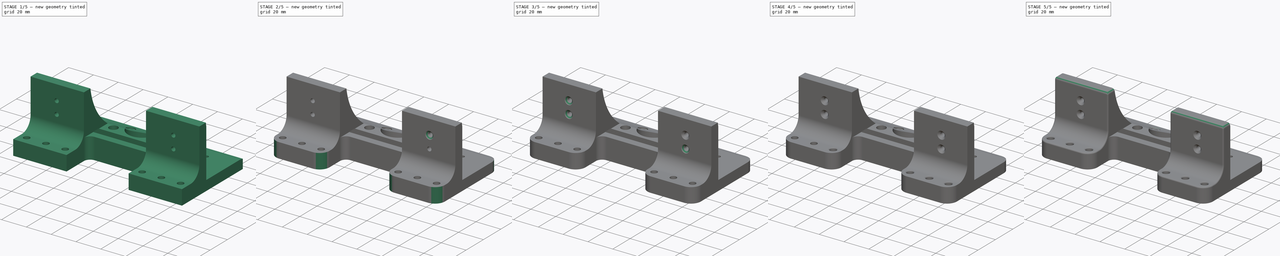
[diagram: build sequence overview — one tinted view per stage of 5, left to right]
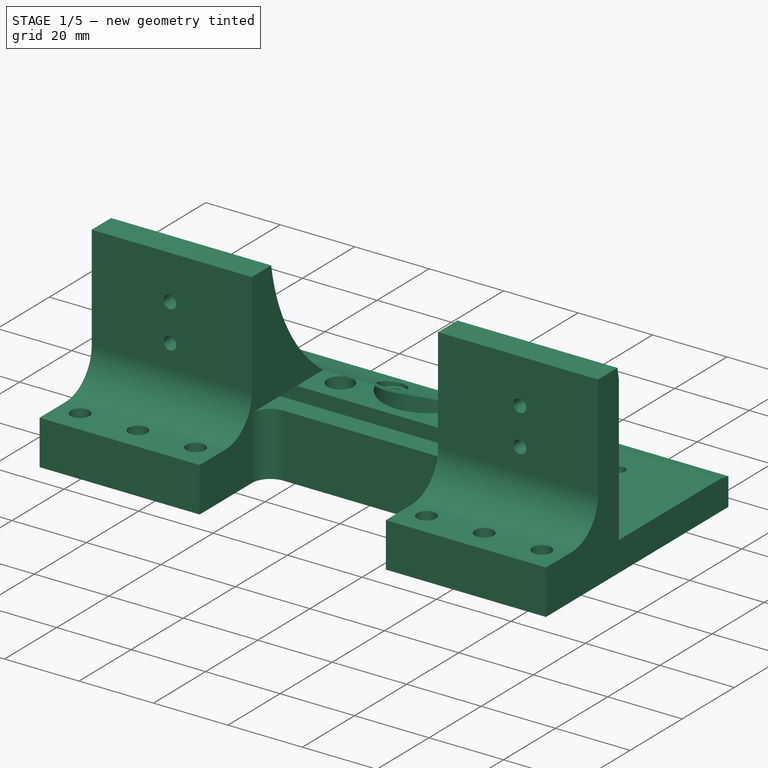
[diagram: stage 1 of 5 — iso view after this stage's code; geometry added in this stage tinted green]
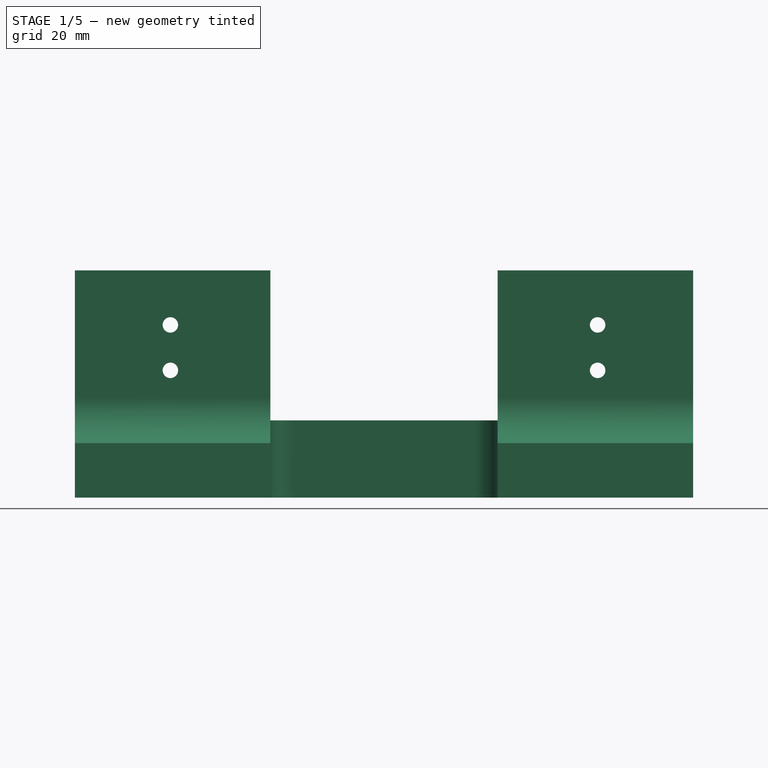
[diagram: stage 1 of 5 — front view after this stage's code; geometry added in this stage tinted green]
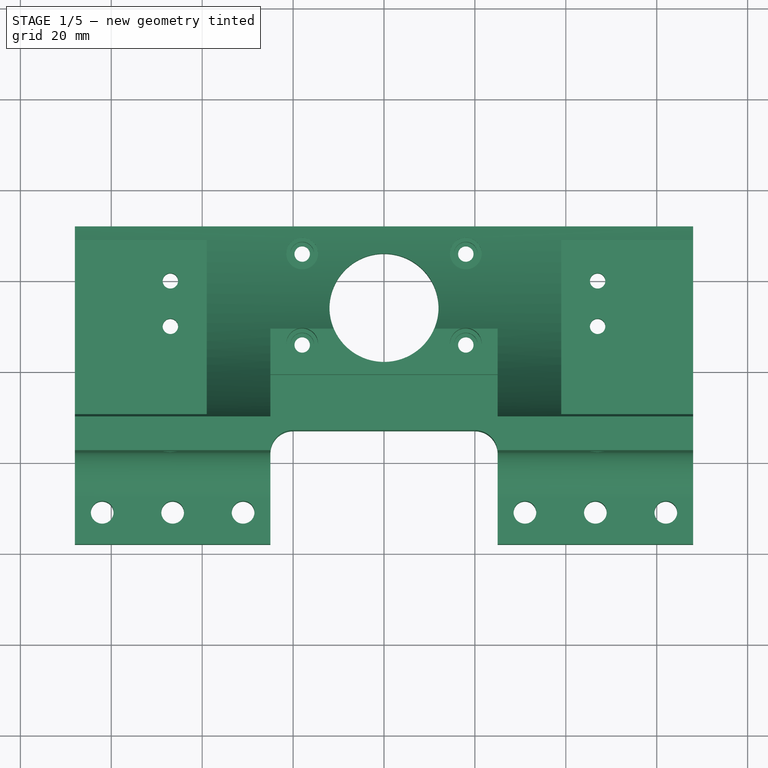
[diagram: stage 1 of 5 — top view after this stage's code; geometry added in this stage tinted green]
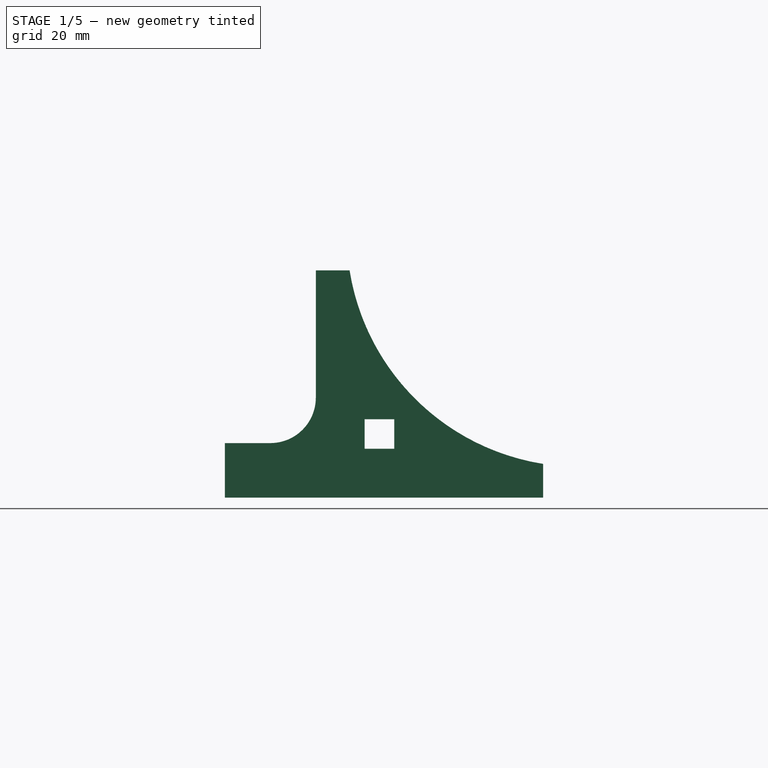
[diagram: stage 1 of 5 — right view after this stage's code; geometry added in this stage tinted green]
FCSTD DOCUMENT  (FreeCAD 0.16R6706 (Git))
Label: HipReinforce2
License: All rights reserved
LicenseURL: http://en.wikipedia.org/wiki/All_rights_reserved
objects: PartDesign::Fillet×18, PartDesign::Chamfer×14, Sketcher::SketchObject×10, PartDesign::Pocket×9, PartDesign::Pad×1
note: 62 computed .brp shape members not serialized (recipe doc carries the construction recipe); baked Part::Feature solids carry a one-line shape summary decoded from their .brp

FEATURE [Sketcher::SketchObject] Sketch
  sketch-geometry (13):
    g0: LineSegment StartX=-68 StartY=-88 StartZ=0 EndX=68 EndY=-88 EndZ=0
    g1: LineSegment StartX=68 StartY=-88 StartZ=0 EndX=68 EndY=-158 EndZ=0
    g2: LineSegment StartX=68 StartY=-158 StartZ=0 EndX=-68 EndY=-158 EndZ=0
    g3: LineSegment StartX=-68 StartY=-158 StartZ=0 EndX=-68 EndY=-88 EndZ=0
    g4: LineSegment [constr] StartX=-25 StartY=-29 StartZ=0 EndX=25 EndY=-29 EndZ=0
    g5: LineSegment [constr] StartX=25 StartY=-29 StartZ=0 EndX=25 EndY=-131 EndZ=0
    g6: LineSegment [constr] StartX=25 StartY=-131 StartZ=0 EndX=-25 EndY=-131 EndZ=0
    g7: LineSegment [constr] StartX=-25 StartY=-131 StartZ=0 EndX=-25 EndY=-29 EndZ=0
    g8: LineSegment [constr] StartX=-75 StartY=-80 StartZ=0 EndX=75 EndY=-80 EndZ=0
    g9: LineSegment [constr] StartX=-68 StartY=-30 StartZ=0 EndX=-39 EndY=-30 EndZ=0
    g10: LineSegment [constr] StartX=-39 StartY=-30 StartZ=0 EndX=-39 EndY=-130 EndZ=0
    g11: LineSegment [constr] StartX=-39 StartY=-130 StartZ=0 EndX=-68 EndY=-130 EndZ=0
    g12: LineSegment [constr] StartX=-68 StartY=-130 StartZ=0 EndX=-68 EndY=-30 EndZ=0
  constraints (40):
    c: Coincident(g0,g1)
    c: Coincident(g1,g2)
    c: Coincident(g2,g3)
    c: Coincident(g3,g0)
    c: Horizontal(g0)
    c: Horizontal(g2)
    c: Vertical(g1)
    c: Vertical(g3)
    c: Symmetric(g0,g0,g-2)
    c: Coincident(g4,g5)
    c: Coincident(g5,g6)
    c: Coincident(g6,g7)
    c: Coincident(g7,g4)
    c: Horizontal(g4)
    c: Horizontal(g6)
    c: Vertical(g5)
    c: Vertical(g7)
    c: DistanceY(g8,g-1) = 80
    c: Symmetric(g6,g4,g8)
    c: DistanceX(g6,g5) = 50
    c: DistanceY(g5,g4) = 102
    c: Coincident(g9,g10)
    c: Coincident(g10,g11)
    c: Coincident(g11,g12)
    c: Coincident(g12,g9)
    c: Horizontal(g9)
    c: Horizontal(g11)
    c: Vertical(g10)
    c: Vertical(g12)
    c: DistanceY(g11,g9) = 100
    c: Symmetric(g10,g9,g8)
    c: DistanceX(g11,g10) = 29
    c: DistanceX(g10,g6) = 14
    c: Symmetric(g4,g4,g-2)
    c: PointOnObject(g11,g3)
    c: DistanceY(g0,g8) = 8
    c: Symmetric(g8,g8,g-2)
    c: DistanceX(g8,g8) = 150
    c: DistanceY(g1,g0) = 70
    c: DistanceY(g2,g10) = 28
FEATURE [PartDesign::Pad] Pad
  Length = 50
  Length2 = 100
  Sketch = -> Sketch
  Type = 0
FEATURE [Sketcher::SketchObject] Sketch001
  Placement = pos=(-68,0,0) rot=(0.57735,-0.57735,-0.57735;2.0944rad)
  Support = -> Pad [Face4]
  sketch-geometry (20):
    g0: Circle CenterX=80 CenterY=58 CenterZ=0 NormalX=0 NormalY=0 NormalZ=1 Radius=51.2
    g1: LineSegment [constr] StartX=30 StartY=108 StartZ=0 EndX=130 EndY=108 EndZ=0
    g2: LineSegment [constr] StartX=130 StartY=108 StartZ=0 EndX=130 EndY=8 EndZ=0
    g3: LineSegment [constr] StartX=130 StartY=8 StartZ=0 EndX=30 EndY=8 EndZ=0
    g4: LineSegment [constr] StartX=30 StartY=8 StartZ=0 EndX=30 EndY=108 EndZ=0
    g5: LineSegment StartX=120.75 StartY=17.25 StartZ=0 EndX=127.25 EndY=17.25 EndZ=0
    g6: LineSegment StartX=127.25 StartY=17.25 StartZ=0 EndX=127.25 EndY=10.75 EndZ=0
    g7: LineSegment StartX=127.25 StartY=10.75 StartZ=0 EndX=120.75 EndY=10.75 EndZ=0
    g8: LineSegment StartX=120.75 StartY=10.75 StartZ=0 EndX=120.75 EndY=17.25 EndZ=0
    g9: GeomPoint [constr] X=124 Y=14 Z=0
    g10: Circle [constr] CenterX=124 CenterY=23 CenterZ=0 NormalX=0 NormalY=0 NormalZ=1 Radius=1.7
    g11: LineSegment [constr] StartX=124 StartY=14 StartZ=0 EndX=124 EndY=23 EndZ=0
    g12: LineSegment StartX=138 StartY=112 StartZ=0 EndX=178 EndY=112 EndZ=0
    g13: LineSegment StartX=178 StartY=112 StartZ=0 EndX=178 EndY=12 EndZ=0
    g14: LineSegment StartX=178 StartY=12 StartZ=0 EndX=148 EndY=12 EndZ=0
    g15: LineSegment StartX=138 StartY=22 StartZ=0 EndX=138 EndY=112 EndZ=0
    g16: LineSegment [constr] StartX=130 StartY=8 StartZ=0 EndX=138 EndY=8 EndZ=0
    g17: Circle [constr] CenterX=115 CenterY=14 CenterZ=0 NormalX=0 NormalY=0 NormalZ=1 Radius=1.5
    g18: LineSegment [constr] StartX=124 StartY=14 StartZ=0 EndX=115 EndY=14 EndZ=0
    g19: ArcOfCircle CenterX=148 CenterY=22 CenterZ=0 NormalX=0 NormalY=0 NormalZ=1 Radius=10 StartAngle=3.14159 EndAngle=4.71239
  constraints (56):
    c: Radius(g0) = 51.2
    c: DistanceX(g-1,g0) = 80
    c: DistanceY(g-1,g0) = 58
    c: Coincident(g1,g2)
    c: Coincident(g2,g3)
    c: Coincident(g3,g4)
    c: Coincident(g4,g1)
    c: Horizontal(g1)
    c: Horizontal(g3)
    c: Vertical(g2)
    c: Vertical(g4)
    c: Equal(g2,g1)
    c: DistanceX(g1,g1) = 100
    c: Symmetric(g3,g1,g0)
    c: Coincident(g5,g6)
    c: Coincident(g6,g7)
    c: Coincident(g7,g8)
    c: Coincident(g8,g5)
    c: Horizontal(g5)
    c: Horizontal(g7)
    c: Vertical(g6)
    c: Vertical(g8)
    c: Symmetric(g7,g5,g9)
    c: DistanceY(g2,g9) = 6
    c: DistanceX(g9,g2) = 6
    c: DistanceY(g7,g5) = 6.5
    c: Equal(g7,g8)
    c: Radius(g10) = 1.7
    c: DistanceY(g9,g10) = 9
    c: Coincident(g11,g9)
    c: Coincident(g11,g10)
    c: Vertical(g11)
    c: Coincident(g12,g13)
    c: Coincident(g13,g14)
    c: Coincident(g15,g12)
    c: Horizontal(g12)
    c: Horizontal(g14)
    c: Vertical(g13)
    c: Vertical(g15)
    c: DistanceY(g13,g12) = 100
    c: DistanceX(g12,g12) = 40
    c: DistanceX(g-1,g16) = 138
    c: Coincident(g16,g2)
    c: Horizontal(g16)
    c: Coincident(g18,g9)
    c: Coincident(g18,g17)
    c: Horizontal(g18)
    c: DistanceX(g17,g9) = 9
    c: Radius(g17) = 1.5
    c: DistanceX(g-1,g17) = 115
    c: DistanceY(g-1,g17) = 14
    c: Tangent(g14,g19) = 1.5708
    c: Tangent(g15,g19) = 1.5708
    c: DistanceY(g16,g15) = 14
    c: DistanceX(g2,g15) = 8
    c: DistanceY(g-1,g14) = 12
FEATURE [PartDesign::Pocket] Pocket
  Length = 5
  Sketch = -> Sketch001
  Type = 1
FEATURE [Sketcher::SketchObject] Sketch002
  Placement = pos=(-68,0,0) rot=(0.57735,-0.57735,-0.57735;2.0944rad)
  Support = -> Pocket [Face5]
  sketch-geometry (5):
    g0: LineSegment StartX=30 StartY=108 StartZ=0 EndX=130 EndY=108 EndZ=0
    g1: LineSegment StartX=130 StartY=108 StartZ=0 EndX=130 EndY=8 EndZ=0
    g2: LineSegment StartX=130 StartY=8 StartZ=0 EndX=30 EndY=8 EndZ=0
    g3: LineSegment StartX=30 StartY=8 StartZ=0 EndX=30 EndY=108 EndZ=0
    g4: GeomPoint [constr] X=80 Y=58 Z=0
  constraints (13):
    c: Coincident(g0,g1)
    c: Coincident(g1,g2)
    c: Coincident(g2,g3)
    c: Coincident(g3,g0)
    c: Horizontal(g0)
    c: Horizontal(g2)
    c: Vertical(g1)
    c: Vertical(g3)
    c: Symmetric(g2,g0,g4)
    c: Equal(g3,g0)
    c: DistanceY(g2,g0) = 100
    c: DistanceY(g-1,g4) = 58
    c: DistanceX(g-1,g4) = 80
FEATURE [PartDesign::Pocket] Pocket001
  Length = 29
  Sketch = -> Sketch002
  Type = 0
FEATURE [Sketcher::SketchObject] Sketch003
  Placement = pos=(68,0,0) rot=(0.57735,0.57735,0.57735;2.0944rad)
  Support = -> Pocket001 [Face3]
  sketch-geometry (5):
    g0: LineSegment StartX=-130 StartY=108 StartZ=0 EndX=-30 EndY=108 EndZ=0
    g1: LineSegment StartX=-30 StartY=108 StartZ=0 EndX=-30 EndY=8 EndZ=0
    g2: LineSegment StartX=-30 StartY=8 StartZ=0 EndX=-130 EndY=8 EndZ=0
    g3: LineSegment StartX=-130 StartY=8 StartZ=0 EndX=-130 EndY=108 EndZ=0
    g4: GeomPoint [constr] X=-80 Y=58 Z=0
  constraints (13):
    c: Coincident(g0,g1)
    c: Coincident(g1,g2)
    c: Coincident(g2,g3)
    c: Coincident(g3,g0)
    c: Horizontal(g0)
    c: Horizontal(g2)
    c: Vertical(g1)
    c: Vertical(g3)
    c: DistanceY(g-1,g4) = 58
    c: Symmetric(g2,g0,g4)
    c: Equal(g1,g0)
    c: DistanceY(g1,g0) = 100
    c: DistanceX(g4,g-1) = 80
FEATURE [PartDesign::Pocket] Pocket002
  Length = 29
  Sketch = -> Sketch003
  Type = 0
FEATURE [Sketcher::SketchObject] Sketch004
  Placement = pos=(0,-158,0) rot=(1,0,0;1.5708rad)
  Support = -> Pocket002 [Face6]
  sketch-geometry (14):
    g0: LineSegment StartX=-25 StartY=117 StartZ=0 EndX=25 EndY=117 EndZ=0
    g1: LineSegment StartX=25 StartY=117 StartZ=0 EndX=25 EndY=17 EndZ=0
    g2: LineSegment StartX=25 StartY=17 StartZ=0 EndX=-25 EndY=17 EndZ=0
    g3: LineSegment StartX=-25 StartY=17 StartZ=0 EndX=-25 EndY=117 EndZ=0
    g4: LineSegment [constr] StartX=-68 StartY=108 StartZ=0 EndX=-39 EndY=108 EndZ=0
    g5: LineSegment [constr] StartX=-39 StartY=108 StartZ=0 EndX=-39 EndY=8 EndZ=0
    g6: LineSegment [constr] StartX=-39 StartY=8 StartZ=0 EndX=-68 EndY=8 EndZ=0
    g7: LineSegment [constr] StartX=-68 StartY=8 StartZ=0 EndX=-68 EndY=108 EndZ=0
    g8: Circle CenterX=-47 CenterY=38 CenterZ=0 NormalX=0 NormalY=0 NormalZ=1 Radius=1.7
    g9: Circle CenterX=-47 CenterY=28 CenterZ=0 NormalX=0 NormalY=0 NormalZ=1 Radius=1.7
    g10: LineSegment [constr] StartX=-47 StartY=38 StartZ=0 EndX=-47 EndY=28 EndZ=0
    g11: LineSegment [constr] StartX=-68 StartY=58 StartZ=0 EndX=-39 EndY=58 EndZ=0
    g12: Circle CenterX=47 CenterY=38 CenterZ=0 NormalX=0 NormalY=0 NormalZ=1 Radius=1.7
    g13: Circle CenterX=47 CenterY=28 CenterZ=0 NormalX=0 NormalY=0 NormalZ=1 Radius=1.7
  constraints (40):
    c: Coincident(g0,g1)
    c: Coincident(g1,g2)
    c: Coincident(g2,g3)
    c: Coincident(g3,g0)
    c: Horizontal(g0)
    c: Horizontal(g2)
    c: Vertical(g1)
    c: Vertical(g3)
    c: Symmetric(g2,g1,g-2)
    c: DistanceX(g2,g1) = 50
    c: DistanceY(g-1,g1) = 17
    c: DistanceY(g1,g0) = 100
    c: Coincident(g4,g5)
    c: Coincident(g5,g6)
    c: Coincident(g6,g7)
    c: Coincident(g7,g4)
    c: Horizontal(g4)
    c: Horizontal(g6)
    c: Vertical(g5)
    c: Vertical(g7)
    c: DistanceX(g4,g4) = 29
    c: DistanceY(g6,g4) = 100
    c: DistanceY(g-1,g5) = 8
    c: DistanceX(g5,g2) = 14
    c: Coincident(g10,g8)
    c: Coincident(g10,g9)
    c: Vertical(g10)
    c: DistanceY(g9,g8) = 10
    c: DistanceX(g6,g9) = 21
    c: PointOnObject(g11,g7)
    c: Horizontal(g11)
    c: Symmetric(g4,g6,g11)
    c: DistanceY(g8,g11) = 20
    c: Radius(g12) = 1.7
    c: Equal(g12,g8)
    c: Equal(g12,g9)
    c: Equal(g12,g13)
    c: Symmetric(g12,g8,g-2)
    c: Symmetric(g13,g9,g-2)
    c: PointOnObject(g11,g5)
FEATURE [PartDesign::Pocket] Pocket003
  Length = 5
  Sketch = -> Sketch004
  Type = 1
FEATURE [Sketcher::SketchObject] Sketch005
  Placement = pos=(0,0,0) rot=(1,0,0;3.14159rad)
  Support = -> Pocket003 [Face2]
  sketch-geometry (42):
    g0: LineSegment [constr] StartX=-68 StartY=130 StartZ=0 EndX=-39 EndY=130 EndZ=0
    g1: LineSegment [constr] StartX=-39 StartY=130 StartZ=0 EndX=-39 EndY=30 EndZ=0
    g2: LineSegment [constr] StartX=-39 StartY=30 StartZ=0 EndX=-68 EndY=30 EndZ=0
    g3: LineSegment [constr] StartX=-68 StartY=30 StartZ=0 EndX=-68 EndY=130 EndZ=0
    g4: LineSegment [constr] StartX=-68 StartY=80 StartZ=0 EndX=-39 EndY=80 EndZ=0
    g5: LineSegment [constr] StartX=-25 StartY=120 StartZ=0 EndX=25 EndY=120 EndZ=0
    g6: LineSegment [constr] StartX=25 StartY=120 StartZ=0 EndX=25 EndY=40 EndZ=0
    g7: LineSegment [constr] StartX=25 StartY=40 StartZ=0 EndX=-25 EndY=40 EndZ=0
    g8: LineSegment [constr] StartX=-25 StartY=40 StartZ=0 EndX=-25 EndY=120 EndZ=0
    g9: Circle CenterX=-47 CenterY=110 CenterZ=0 NormalX=0 NormalY=0 NormalZ=1 Radius=1.7
    g10: Circle CenterX=-47 CenterY=100 CenterZ=0 NormalX=0 NormalY=0 NormalZ=1 Radius=1.7
    g11: LineSegment [constr] StartX=-47 StartY=110 StartZ=0 EndX=-47 EndY=100 EndZ=0
    g12: Circle CenterX=47 CenterY=110 CenterZ=0 NormalX=0 NormalY=0 NormalZ=1 Radius=1.7
    g13: Circle CenterX=47 CenterY=100 CenterZ=0 NormalX=0 NormalY=0 NormalZ=1 Radius=1.7
    g14: Circle CenterX=0 CenterY=106 CenterZ=0 NormalX=0 NormalY=0 NormalZ=1 Radius=12
    g15: ArcOfCircle CenterX=-20 CenterY=138 CenterZ=0 NormalX=0 NormalY=0 NormalZ=1 Radius=5 StartAngle=3.14159 EndAngle=4.71239
    g16: ArcOfCircle CenterX=20 CenterY=138 CenterZ=0 NormalX=0 NormalY=0 NormalZ=1 Radius=5 StartAngle=4.71239 EndAngle=6.28319
    g17: LineSegment StartX=-20 StartY=133 StartZ=0 EndX=20 EndY=133 EndZ=0
    g18: ArcOfCircle [constr] CenterX=-20 CenterY=82 CenterZ=0 NormalX=0 NormalY=0 NormalZ=1 Radius=5 StartAngle=1.5708 EndAngle=4.71239
    g19: ArcOfCircle [constr] CenterX=20 CenterY=82 CenterZ=0 NormalX=0 NormalY=0 NormalZ=1 Radius=5 StartAngle=4.71239 EndAngle=7.85398
    g20: LineSegment [constr] StartX=-20 StartY=77 StartZ=0 EndX=20 EndY=77 EndZ=0
    g21: LineSegment [constr] StartX=-20 StartY=87 StartZ=0 EndX=20 EndY=87 EndZ=0
    g22: LineSegment [constr] StartX=-25 StartY=120 StartZ=0 EndX=-25 EndY=150 EndZ=0
    g23: LineSegment [constr] StartX=25 StartY=120 StartZ=0 EndX=25 EndY=150 EndZ=0
    g24: LineSegment [constr] StartX=-25 StartY=150 StartZ=0 EndX=25 EndY=150 EndZ=0
    g25: Circle CenterX=-18 CenterY=114 CenterZ=0 NormalX=0 NormalY=0 NormalZ=1 Radius=1.7
    g26: Circle CenterX=18 CenterY=114 CenterZ=0 NormalX=0 NormalY=0 NormalZ=1 Radius=1.7
    g27: Circle CenterX=18 CenterY=94 CenterZ=0 NormalX=0 NormalY=0 NormalZ=1 Radius=1.7
    g28: Circle CenterX=-18 CenterY=94 CenterZ=0 NormalX=0 NormalY=0 NormalZ=1 Radius=1.7
    g29: Circle [constr] CenterX=18 CenterY=94 CenterZ=0 NormalX=0 NormalY=0 NormalZ=1 Radius=3.5
    g30: LineSegment StartX=-25 StartY=158 StartZ=0 EndX=25 EndY=158 EndZ=0
    g31: LineSegment StartX=25 StartY=158 StartZ=0 EndX=25 EndY=138 EndZ=0
    g32: LineSegment [constr] StartX=25 StartY=138 StartZ=0 EndX=-25 EndY=138 EndZ=0
    g33: LineSegment StartX=-25 StartY=138 StartZ=0 EndX=-25 EndY=158 EndZ=0
    g34: Circle CenterX=-62 CenterY=151 CenterZ=0 NormalX=0 NormalY=0 NormalZ=1 Radius=2.5
    g35: Circle CenterX=-46.5 CenterY=151 CenterZ=0 NormalX=0 NormalY=0 NormalZ=1 Radius=2.5
    g36: Circle CenterX=-31 CenterY=151 CenterZ=0 NormalX=0 NormalY=0 NormalZ=1 Radius=2.5
    g37: LineSegment [constr] StartX=-68 StartY=151 StartZ=0 EndX=67 EndY=151 EndZ=0
    g38: LineSegment [constr] StartX=-68 StartY=130 StartZ=0 EndX=-68 EndY=151 EndZ=0
    g39: Circle CenterX=31 CenterY=151 CenterZ=0 NormalX=0 NormalY=0 NormalZ=1 Radius=2.5
    g40: Circle CenterX=46.5 CenterY=151 CenterZ=0 NormalX=0 NormalY=0 NormalZ=1 Radius=2.5
    g41: Circle CenterX=62 CenterY=151 CenterZ=0 NormalX=0 NormalY=0 NormalZ=1 Radius=2.5
  constraints (114):
    c: Coincident(g1,g2)
    c: Coincident(g2,g3)
    c: Coincident(g3,g0)
    c: Horizontal(g0)
    c: Horizontal(g2)
    c: Vertical(g1)
    c: Vertical(g3)
    c: PointOnObject(g4,g3)
    c: PointOnObject(g4,g1)
    c: DistanceY(g3,g3) = 100
    c: Symmetric(g2,g0,g4)
    c: Horizontal(g4)
    c: DistanceY(g-1,g4) = 80
    c: Coincident(g5,g6)
    c: Coincident(g6,g7)
    c: Coincident(g7,g8)
    c: Coincident(g8,g5)
    c: Horizontal(g5)
    c: Horizontal(g7)
    c: Vertical(g6)
    c: Vertical(g8)
    c: Symmetric(g7,g6,g-2)
    c: DistanceX(g7,g6) = 50
    c: DistanceX(g1,g7) = 14
    c: DistanceX(g0,g0) = 29
    c: DistanceY(g6,g5) = 80
    c: Coincident(g11,g9)
    c: Coincident(g11,g10)
    c: Vertical(g11)
    c: DistanceY(g10,g9) = 10
    c: DistanceY(g4,g10) = 20
    c: DistanceX(g0,g9) = 21
    c: Symmetric(g9,g12,g-2)
    c: Symmetric(g13,g10,g-2)
    c: Radius(g10) = 1.7
    c: Equal(g10,g9)
    c: Equal(g10,g12)
    c: Equal(g10,g13)
    c: Symmetric(g7,g5,g4)
    c: PointOnObject(g14,g-2)
    c: Radius(g14) = 12
    c: DistanceY(g14,g0) = 24
    c: Tangent(g15,g17) = -1.5708
    c: Tangent(g17,g16) = -1.5708
    c: Horizontal(g17)
    c: Equal(g15,g16)
    c: Tangent(g18,g21) = 1.5708
    c: Tangent(g18,g20) = -1.5708
    c: Tangent(g20,g19) = -1.5708
    c: Tangent(g21,g19) = 1.5708
    c: Horizontal(g20)
    c: Equal(g18,g19)
    c: Tangent(g18,g8)
    c: Tangent(g19,g6)
    c: Coincident(g22,g5)
    c: Vertical(g22)
    c: Coincident(g23,g5)
    c: Vertical(g23)
    c: Tangent(g23,g16)
    c: Tangent(g15,g22)
    c: Coincident(g24,g22)
    c: Coincident(g24,g23)
    c: Horizontal(g24)
    c: DistanceY(g5,g23) = 30
    c: DistanceY(g19,g16) = 56
    c: DistanceY(g18,g18) = 10
    c: Equal(g26,g25)
    c: Equal(g25,g9)
    c: Symmetric(g25,g26,g-2)
    c: DistanceX(g25,g26) = 36
    c: DistanceY(g-1,g26) = 114
    c: Equal(g28,g27)
    c: Equal(g27,g26)
    c: Symmetric(g28,g27,g-2)
    c: DistanceX(g28,g27) = 36
    c: Coincident(g29,g27)
    c: Radius(g29) = 3.5
    c: DistanceY(g28,g25) = 20
    c: DistanceY(g0,g15) = 8
    c: DistanceY(g28,g14) = 12
    c: Coincident(g30,g31)
    c: Coincident(g31,g32)
    c: Coincident(g32,g33)
    c: Coincident(g33,g30)
    c: Horizontal(g30)
    c: Horizontal(g32)
    c: Vertical(g31)
    c: Vertical(g33)
    c: Radius(g15) = 5
    c: Coincident(g15,g32)
    c: Coincident(g16,g31)
    c: PointOnObject(g15,g32)
    c: DistanceY(g16,g30) = 20
    c: Radius(g34) = 2.5
    c: Equal(g34,g35)
    c: Equal(g34,g36)
    c: Horizontal(g37)
    c: PointOnObject(g36,g37)
    c: PointOnObject(g34,g37)
    c: Coincident(g38,g0)
    c: Coincident(g38,g37)
    c: Vertical(g38)
    c: DistanceX(g37,g37) = 135
    c: Coincident(g0,g1)
    c: DistanceY(g0,g37) = 21
    c: DistanceX(g0,g34) = 6
    c: DistanceX(g36,g22) = 6
    c: Symmetric(g36,g34,g35)
    c: Equal(g41,g40)
    c: Equal(g40,g39)
    c: Equal(g39,g36)
    c: Symmetric(g39,g36,g-2)
    c: Symmetric(g40,g35,g-2)
    c: Symmetric(g34,g41,g-2)
FEATURE [PartDesign::Pocket] Pocket004
  Length = 5
  Sketch = -> Sketch005
  Type = 1
FEATURE [Sketcher::SketchObject] Sketch006
  Placement = pos=(0,0,17) rot=(0,0,1;0rad)
  Support = -> Pocket004 [Face39]
  sketch-geometry (4):
    g0: Circle CenterX=-18 CenterY=-94 CenterZ=0 NormalX=0 NormalY=0 NormalZ=1 Radius=3.5
    g1: Circle CenterX=18 CenterY=-94 CenterZ=0 NormalX=0 NormalY=0 NormalZ=1 Radius=3.5
    g2: Circle CenterX=18 CenterY=-114 CenterZ=0 NormalX=0 NormalY=0 NormalZ=1 Radius=3.5
    g3: Circle CenterX=-18 CenterY=-114 CenterZ=0 NormalX=0 NormalY=0 NormalZ=1 Radius=3.5
  constraints (10):
    c: Symmetric(g2,g3,g-2)
    c: Symmetric(g0,g1,g-2)
    c: DistanceY(g3,g0) = 20
    c: DistanceX(g0,g1) = 36
    c: DistanceX(g3,g2) = 36
    c: DistanceY(g3,g-1) = 114
    c: Radius(g3) = 3.5
    c: Equal(g3,g0)
    c: Equal(g3,g1)
    c: Equal(g3,g2)
FEATURE [PartDesign::Pocket] Pocket005
  Length = 10
  Sketch = -> Sketch006
  Type = 0
FEATURE [Sketcher::SketchObject] Sketch007
  Placement = pos=(0,0,7) rot=(0,0,1;0rad)
  Support = -> Pocket005 [Face55]
  sketch-geometry (5):
    g0: Circle CenterX=-18 CenterY=-114 CenterZ=0 NormalX=0 NormalY=0 NormalZ=1 Radius=2.6
    g1: Circle CenterX=18 CenterY=-114 CenterZ=0 NormalX=0 NormalY=0 NormalZ=1 Radius=2.6
    g2: Circle CenterX=-18 CenterY=-94 CenterZ=0 NormalX=0 NormalY=0 NormalZ=1 Radius=2.6
    g3: Circle CenterX=18 CenterY=-94 CenterZ=0 NormalX=0 NormalY=0 NormalZ=1 Radius=2.6
    g4: LineSegment [constr] StartX=-18 StartY=-94 StartZ=0 EndX=-18 EndY=-114 EndZ=0
  constraints (12):
    c: Symmetric(g1,g0,g-2)
    c: Equal(g0,g1)
    c: DistanceX(g0,g1) = 36
    c: Equal(g2,g3)
    c: Equal(g3,g0)
    c: Symmetric(g3,g2,g-2)
    c: Coincident(g4,g2)
    c: Coincident(g4,g0)
    c: Vertical(g4)
    c: DistanceY(g0,g2) = 20
    c: DistanceY(g3,g-1) = 94
    c: Radius(g1) = 2.6
FEATURE [PartDesign::Pocket] Pocket006
  Length = 5
  Sketch = -> Sketch007
  Type = 0
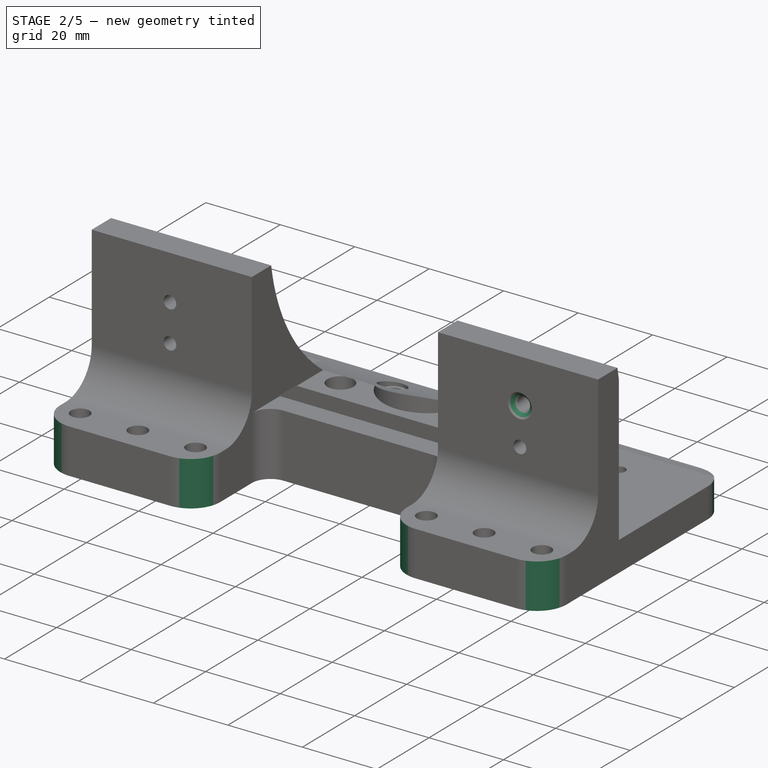
[diagram: stage 2 of 5 — iso view after this stage's code; geometry added in this stage tinted green]
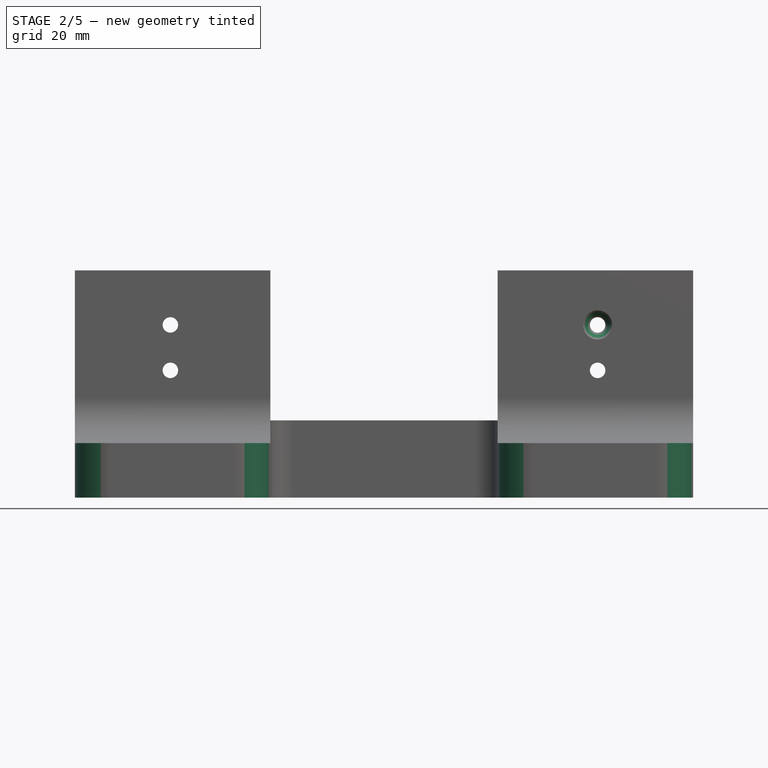
[diagram: stage 2 of 5 — front view after this stage's code; geometry added in this stage tinted green]
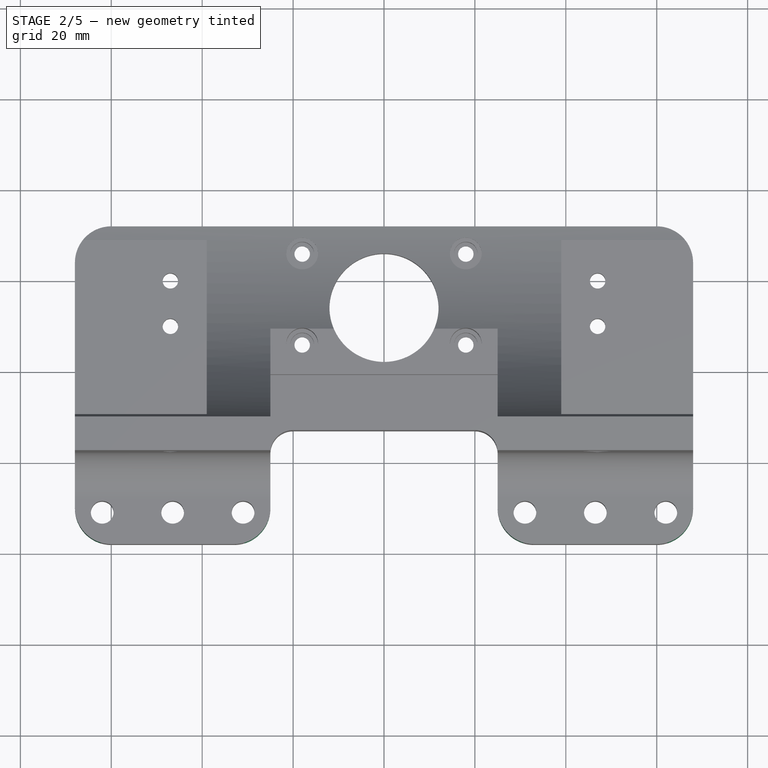
[diagram: stage 2 of 5 — top view after this stage's code; geometry added in this stage tinted green]
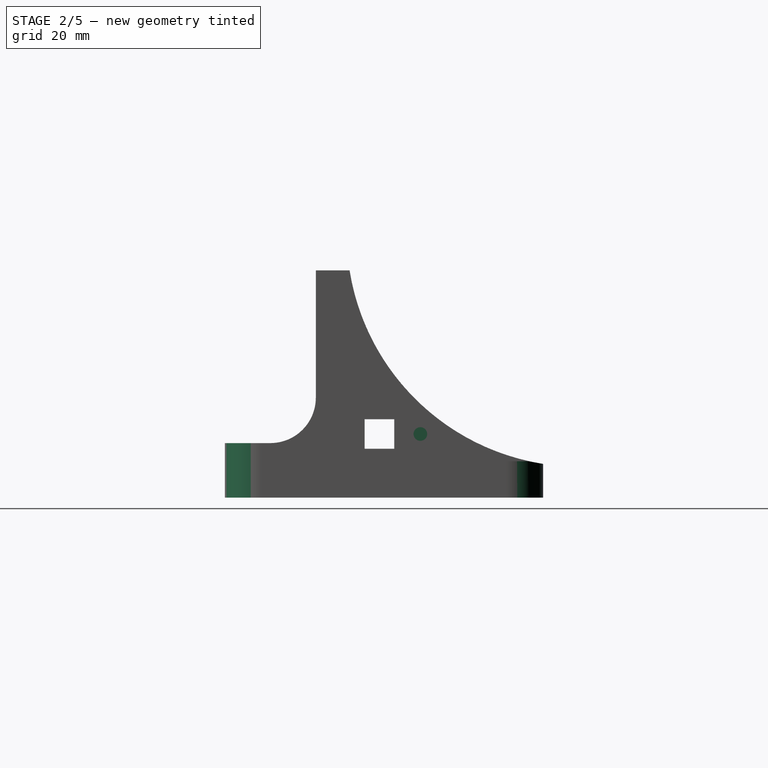
[diagram: stage 2 of 5 — right view after this stage's code; geometry added in this stage tinted green]
FEATURE [Sketcher::SketchObject] Sketch008
  Placement = pos=(-39,0,0) rot=(0.57735,-0.57735,-0.57735;2.0944rad)
  Support = -> Pocket006 [Face35]
  sketch-geometry (1):
    g0: Circle CenterX=115 CenterY=14 CenterZ=0 NormalX=0 NormalY=0 NormalZ=1 Radius=1.5
  constraints (3):
    c: Radius(g0) = 1.5
    c: DistanceX(g-1,g0) = 115
    c: DistanceY(g-1,g0) = 14
FEATURE [PartDesign::Pocket] Pocket007
  Length = 15
  Sketch = -> Sketch008
  Type = 0
FEATURE [Sketcher::SketchObject] Sketch009
  Placement = pos=(39,0,0) rot=(0.57735,0.57735,0.57735;2.0944rad)
  Support = -> Pocket007 [Face43]
  sketch-geometry (1):
    g0: Circle CenterX=-115 CenterY=14 CenterZ=0 NormalX=0 NormalY=0 NormalZ=1 Radius=1.5
  constraints (3):
    c: Radius(g0) = 1.5
    c: DistanceY(g-1,g0) = 14
    c: DistanceX(g0,g-1) = 115
FEATURE [PartDesign::Pocket] Pocket008
  Length = 15
  Sketch = -> Sketch009
  Type = 0
FEATURE [PartDesign::Fillet] Fillet
  Base = -> Pocket008 [Edge29]
  Radius = 8
FEATURE [PartDesign::Fillet] Fillet001
  Base = -> Fillet [Edge41]
  Radius = 8
FEATURE [PartDesign::Fillet] Fillet002
  Base = -> Fillet001 [Edge66]
  Radius = 8
FEATURE [PartDesign::Fillet] Fillet003
  Base = -> Fillet002 [Edge30]
  Radius = 8
FEATURE [PartDesign::Fillet] Fillet004
  Base = -> Fillet003 [Edge37]
  Radius = 8
FEATURE [PartDesign::Fillet] Fillet005
  Base = -> Fillet004 [Edge45]
  Radius = 8
FEATURE [PartDesign::Chamfer] Chamfer
  Base = -> Fillet005 [Edge155]
  Size = 1.5
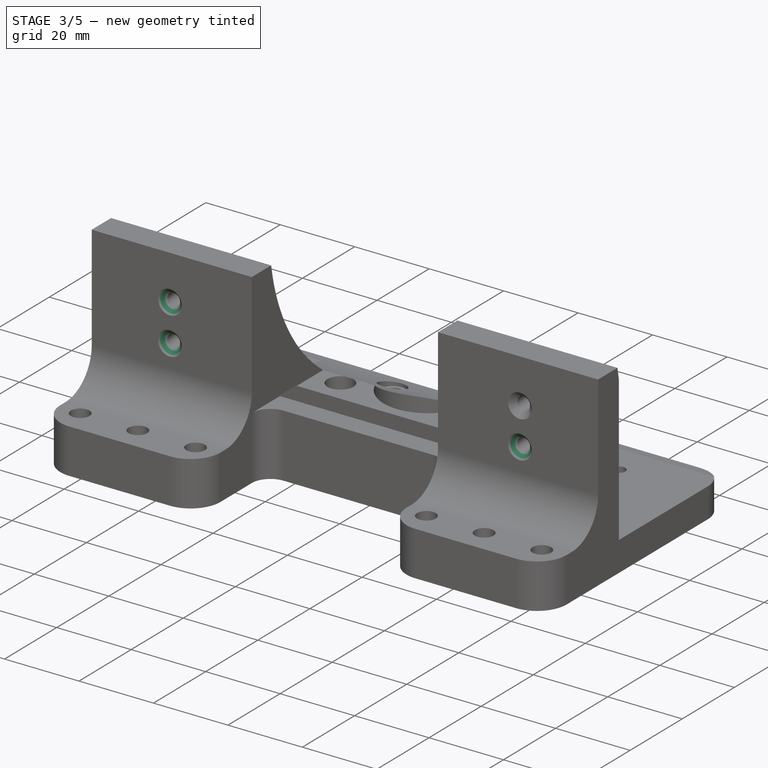
[diagram: stage 3 of 5 — iso view after this stage's code; geometry added in this stage tinted green]
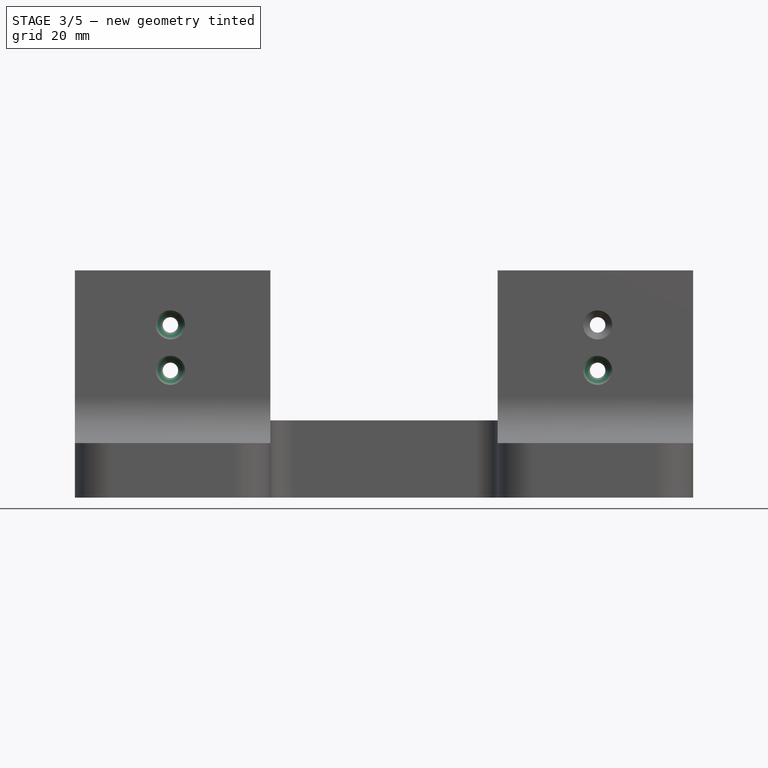
[diagram: stage 3 of 5 — front view after this stage's code; geometry added in this stage tinted green]
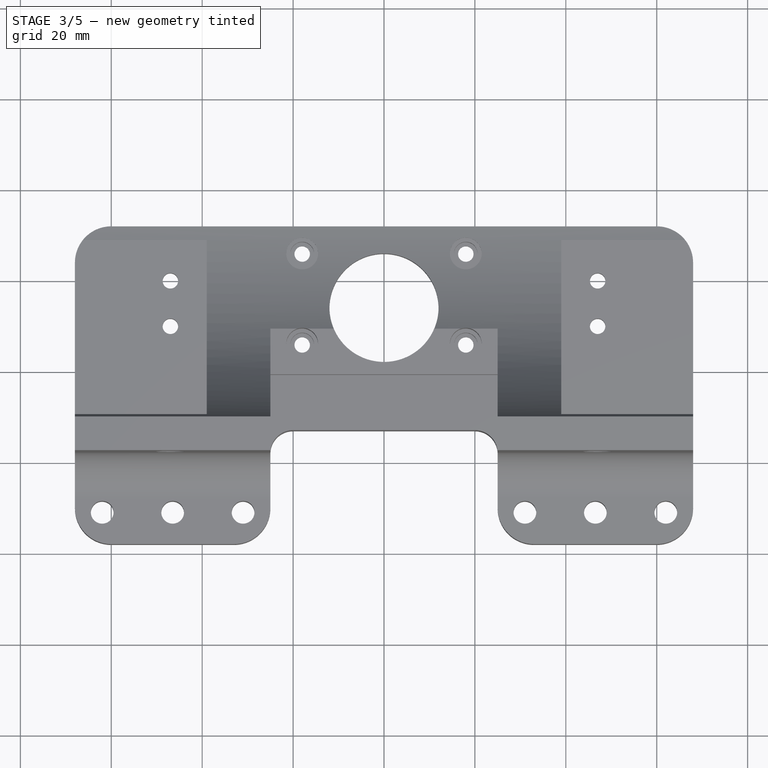
[diagram: stage 3 of 5 — top view after this stage's code; geometry added in this stage tinted green]
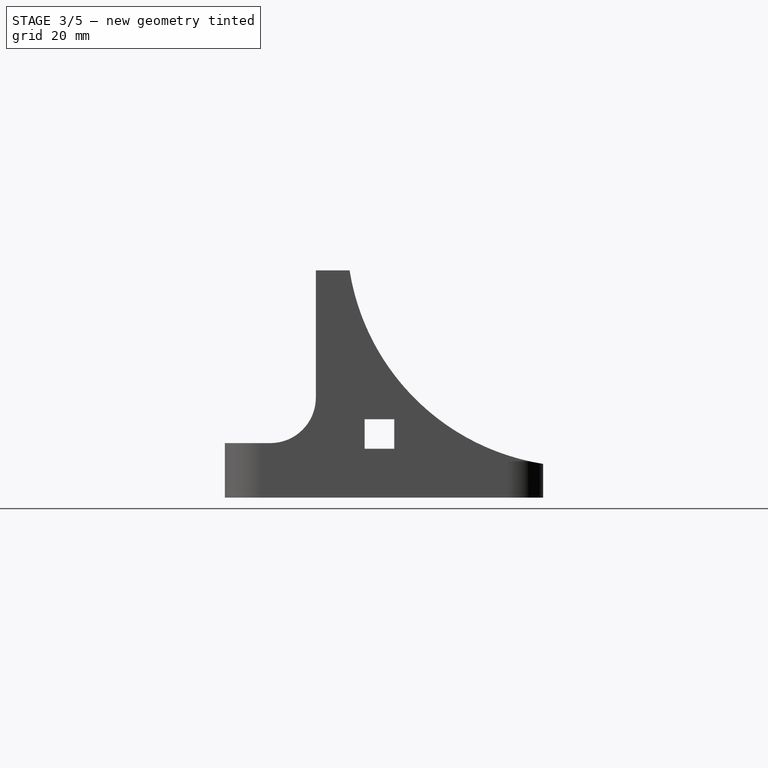
[diagram: stage 3 of 5 — right view after this stage's code; geometry added in this stage tinted green]
FEATURE [PartDesign::Chamfer] Chamfer001
  Base = -> Chamfer [Edge6]
  Size = 1.5
FEATURE [PartDesign::Chamfer] Chamfer002
  Base = -> Chamfer001 [Edge212]
  Size = 1.5
FEATURE [PartDesign::Chamfer] Chamfer003
  Base = -> Chamfer002 [Edge6]
  Size = 1.5
FEATURE [PartDesign::Chamfer] Chamfer004
  Base = -> Chamfer003 [Edge51]
  Size = 1.5
FEATURE [PartDesign::Chamfer] Chamfer005
  Base = -> Chamfer004 [Edge26]
  Size = 1.5
FEATURE [PartDesign::Chamfer] Chamfer006
  Base = -> Chamfer005 [Edge30]
  Size = 1.5
FEATURE [PartDesign::Chamfer] Chamfer007
  Base = -> Chamfer006 [Edge25]
  Size = 1.5
FEATURE [PartDesign::Chamfer] Chamfer008
  Base = -> Chamfer007 [Edge31]
  Size = 1
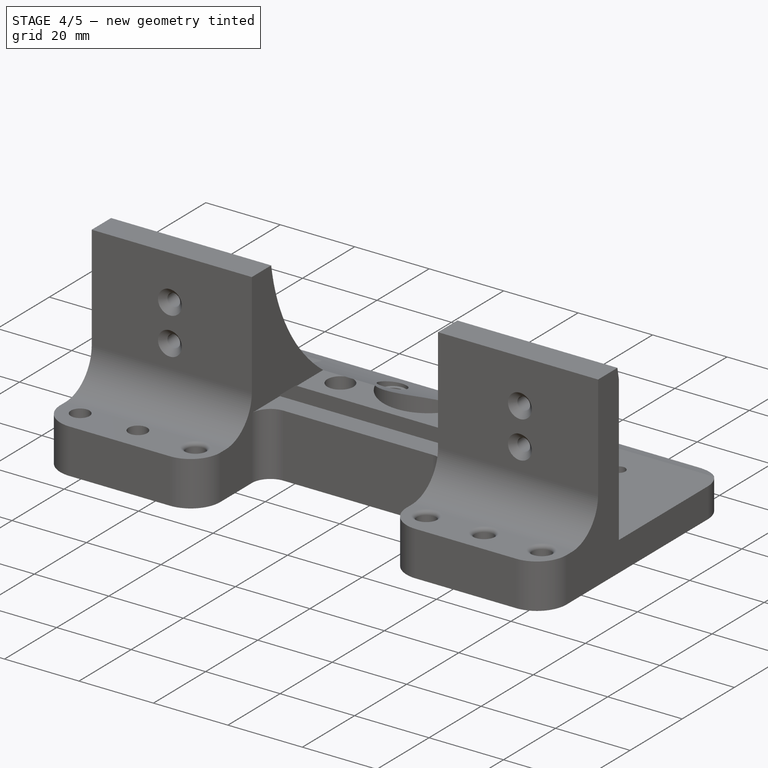
[diagram: stage 4 of 5 — iso view after this stage's code; geometry added in this stage tinted green]
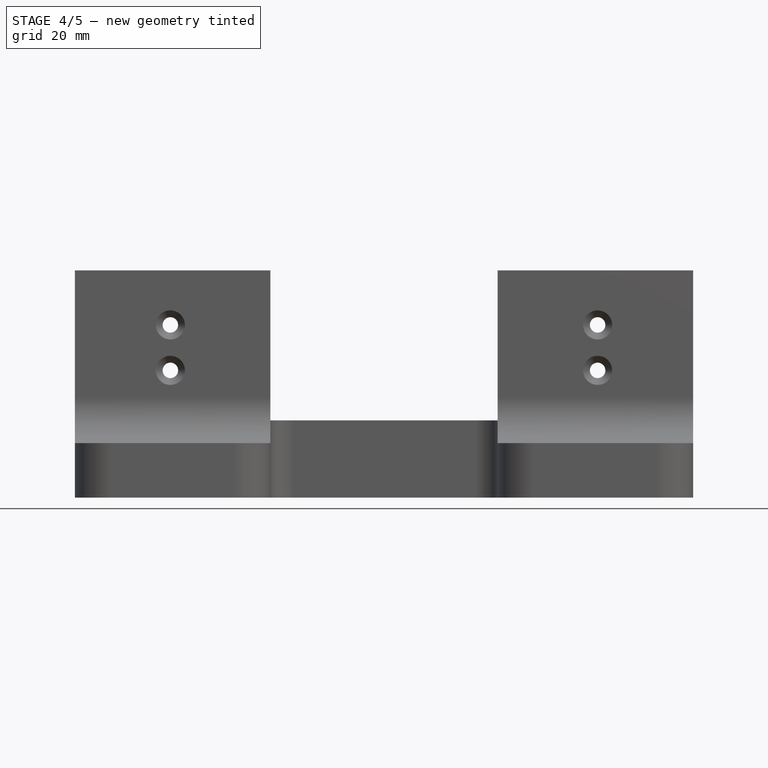
[diagram: stage 4 of 5 — front view after this stage's code; geometry added in this stage tinted green]
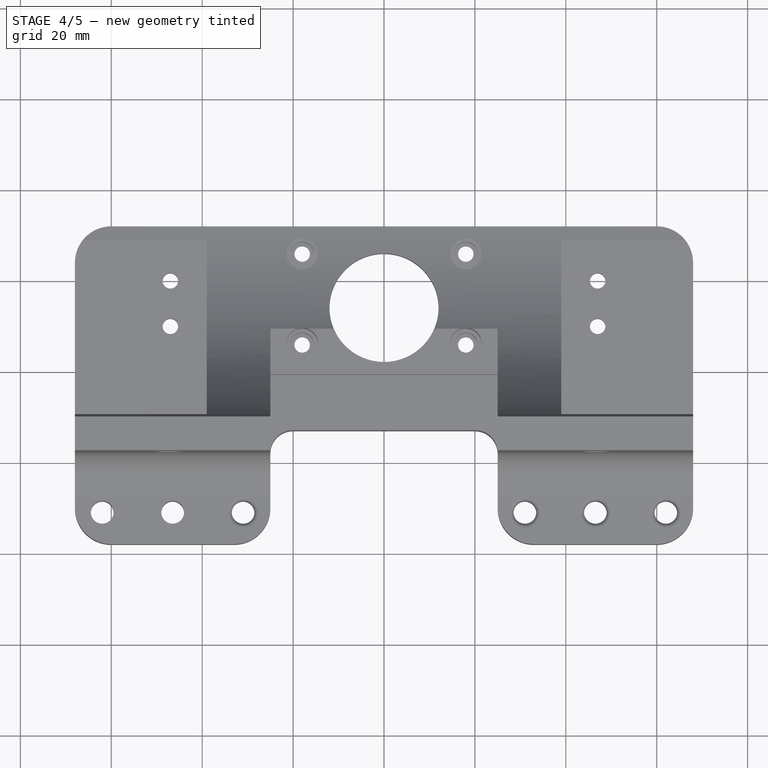
[diagram: stage 4 of 5 — top view after this stage's code; geometry added in this stage tinted green]
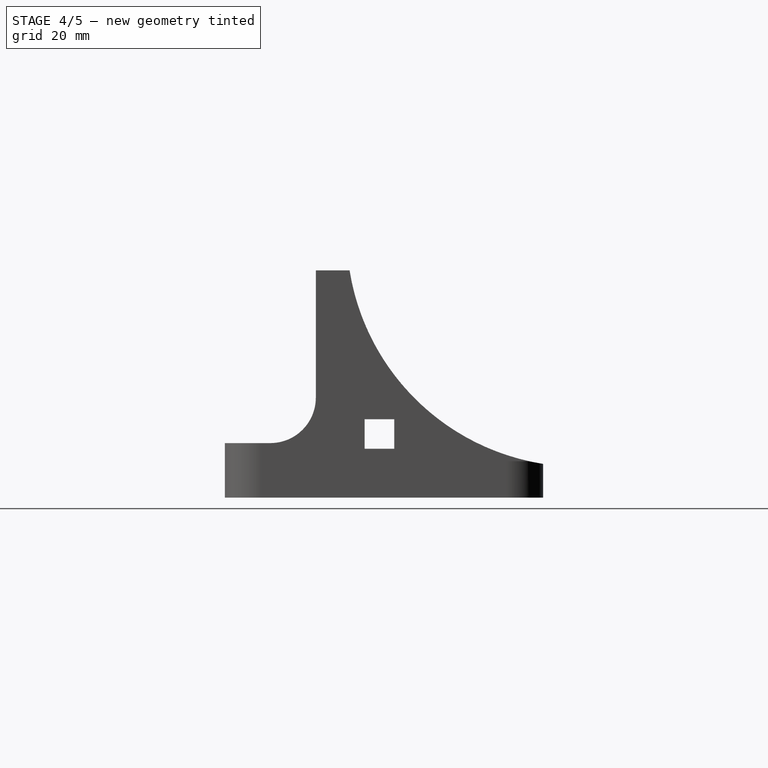
[diagram: stage 4 of 5 — right view after this stage's code; geometry added in this stage tinted green]
FEATURE [PartDesign::Chamfer] Chamfer009
  Base = -> Chamfer008 [Edge23]
  Size = 1
FEATURE [PartDesign::Chamfer] Chamfer010
  Base = -> Chamfer009 [Edge23]
  Size = 1
FEATURE [PartDesign::Chamfer] Chamfer011
  Base = -> Chamfer010 [Edge24]
  Size = 1
FEATURE [PartDesign::Chamfer] Chamfer012
  Base = -> Chamfer011 [Edge25]
  Size = 1
FEATURE [PartDesign::Chamfer] Chamfer013
  Base = -> Chamfer012 [Edge26]
  Size = 1
FEATURE [PartDesign::Fillet] Fillet006
  Base = -> Chamfer013 [Edge127]
  Radius = 1
FEATURE [PartDesign::Fillet] Fillet007
  Base = -> Fillet006 [Edge22]
  Radius = 1
FEATURE [PartDesign::Fillet] Fillet008
  Base = -> Fillet007 [Edge13]
  Radius = 1
FEATURE [PartDesign::Fillet] Fillet009
  Base = -> Fillet008 [Edge251]
  Radius = 1
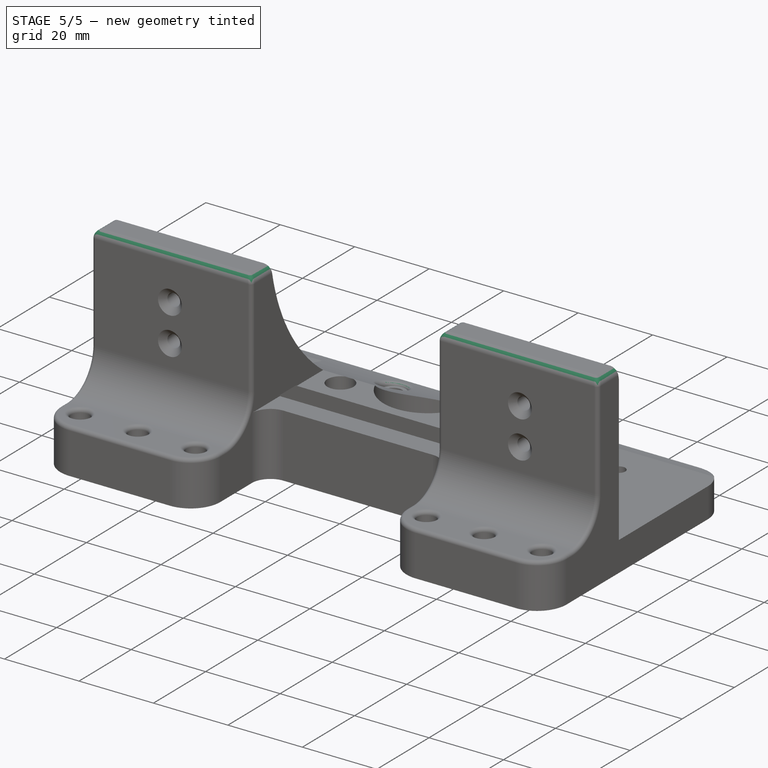
[diagram: stage 5 of 5 — iso view after this stage's code; geometry added in this stage tinted green]
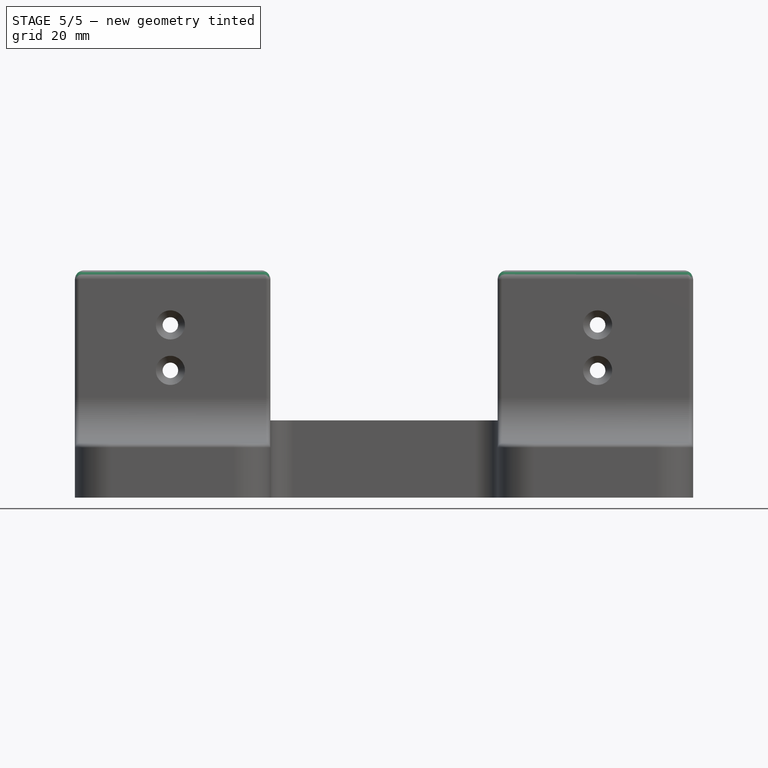
[diagram: stage 5 of 5 — front view after this stage's code; geometry added in this stage tinted green]
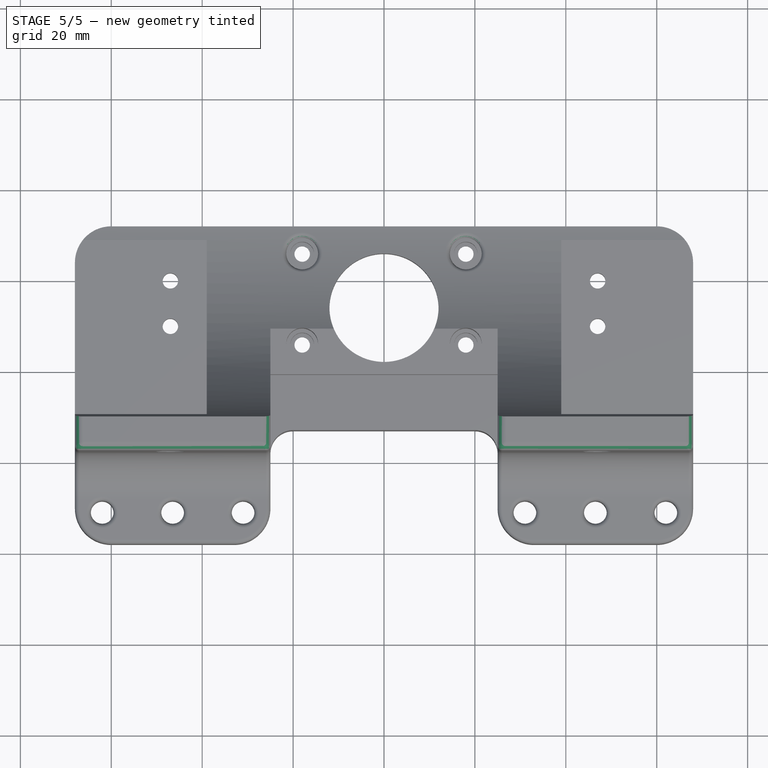
[diagram: stage 5 of 5 — top view after this stage's code; geometry added in this stage tinted green]
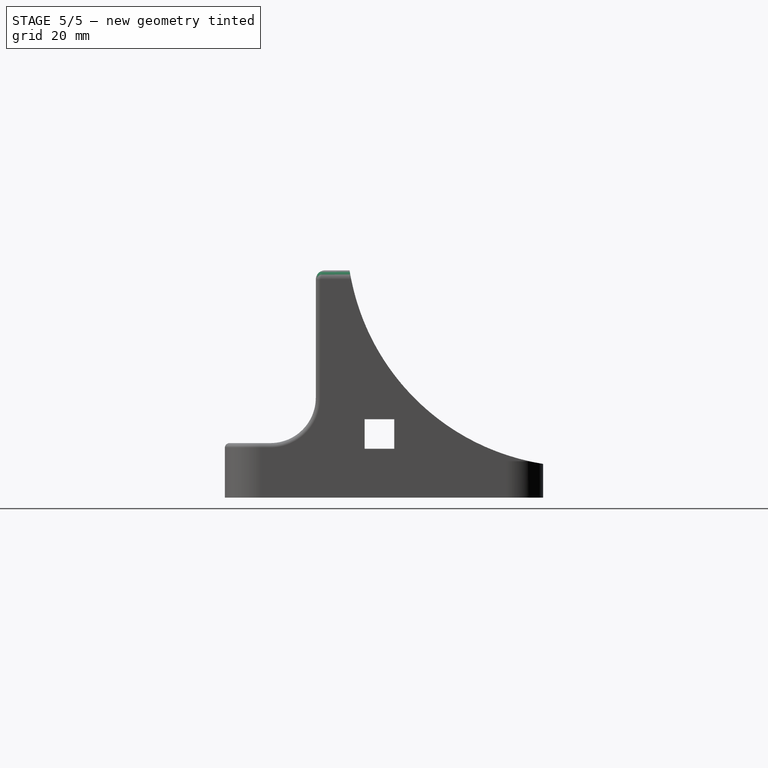
[diagram: stage 5 of 5 — right view after this stage's code; geometry added in this stage tinted green]
FEATURE [PartDesign::Fillet] Fillet010
  Base = -> Fillet009 [Edge21]
  Radius = 1
FEATURE [PartDesign::Fillet] Fillet011
  Base = -> Fillet010 [Edge13]
  Radius = 1
FEATURE [PartDesign::Fillet] Fillet012
  Base = -> Fillet011 [Edge180]
  Radius = 1
FEATURE [PartDesign::Fillet] Fillet013
  Base = -> Fillet012 [Edge146]
  Radius = 1
FEATURE [PartDesign::Fillet] Fillet014
  Base = -> Fillet013 [Edge217]
  Radius = 2
FEATURE [PartDesign::Fillet] Fillet015
  Base = -> Fillet014 [Edge114]
  Radius = 2
FEATURE [PartDesign::Fillet] Fillet016
  Base = -> Fillet015 [Edge38]
  Radius = 1
FEATURE [PartDesign::Fillet] Fillet017
  Base = -> Fillet016 [Edge37]
  Radius = 1
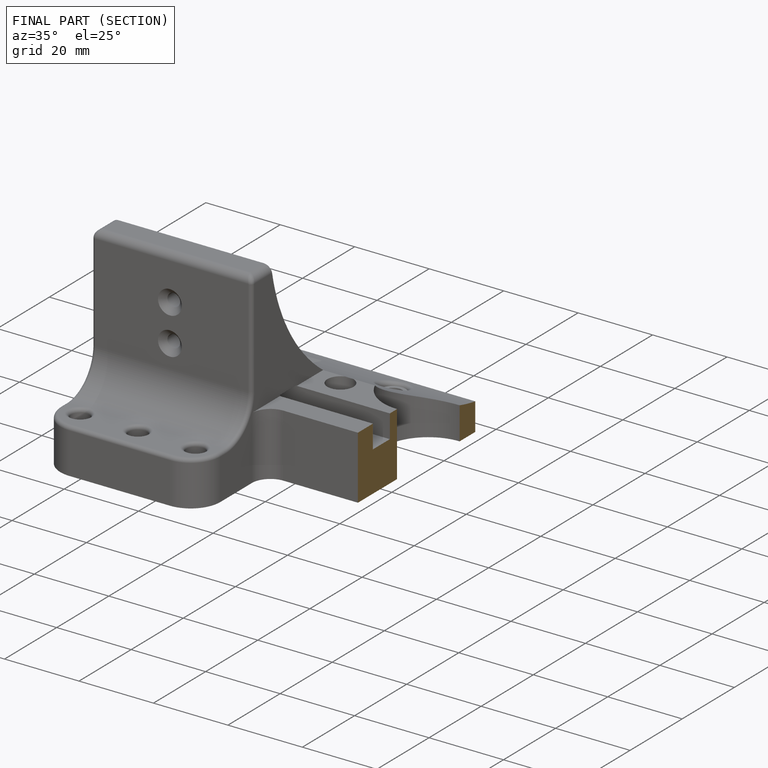
[diagram: finished part — half-section view (interior)]
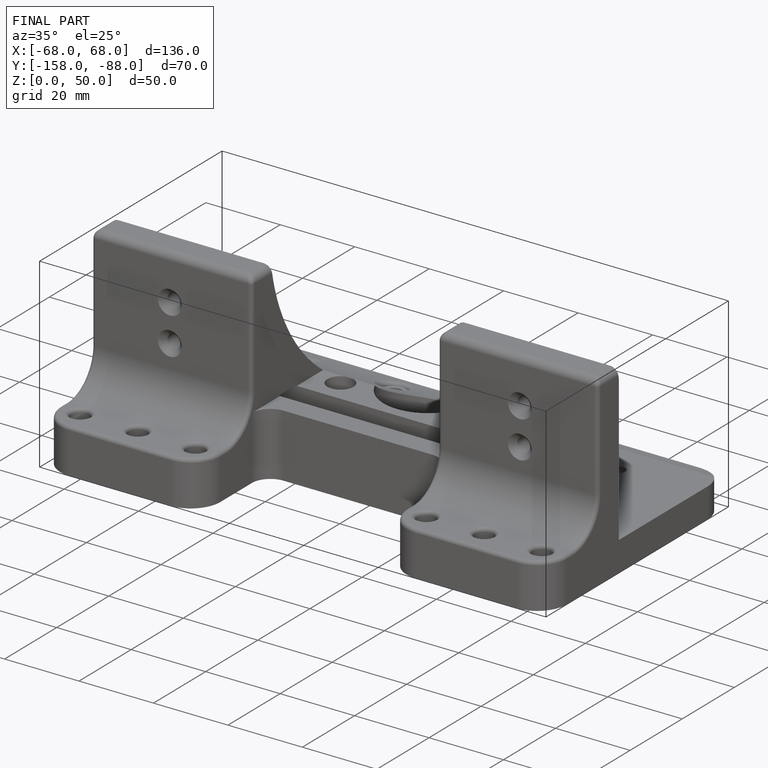
[diagram: finished part — iso view with bounding-box wireframe]
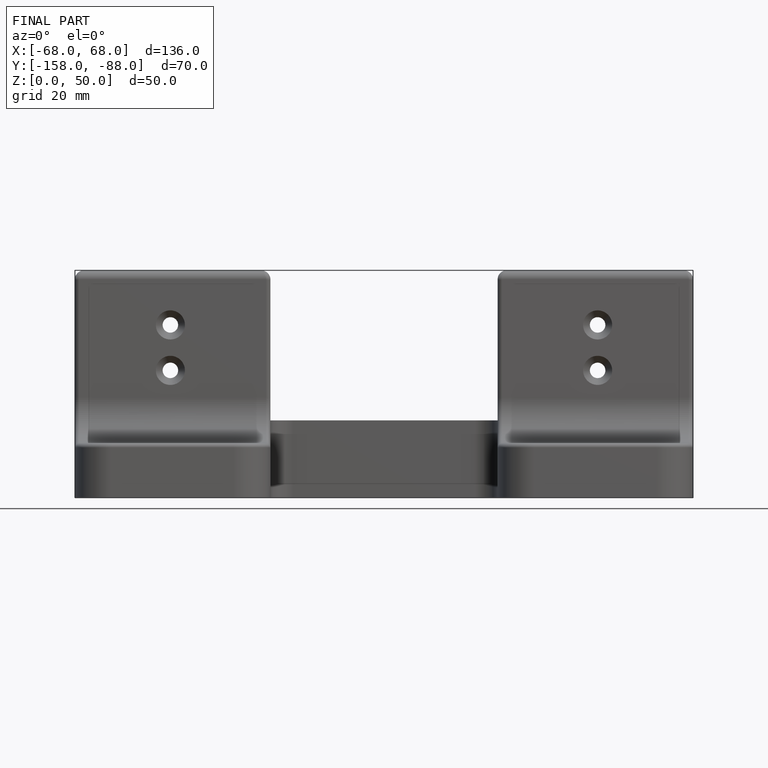
[diagram: finished part — front view with bounding-box wireframe]
